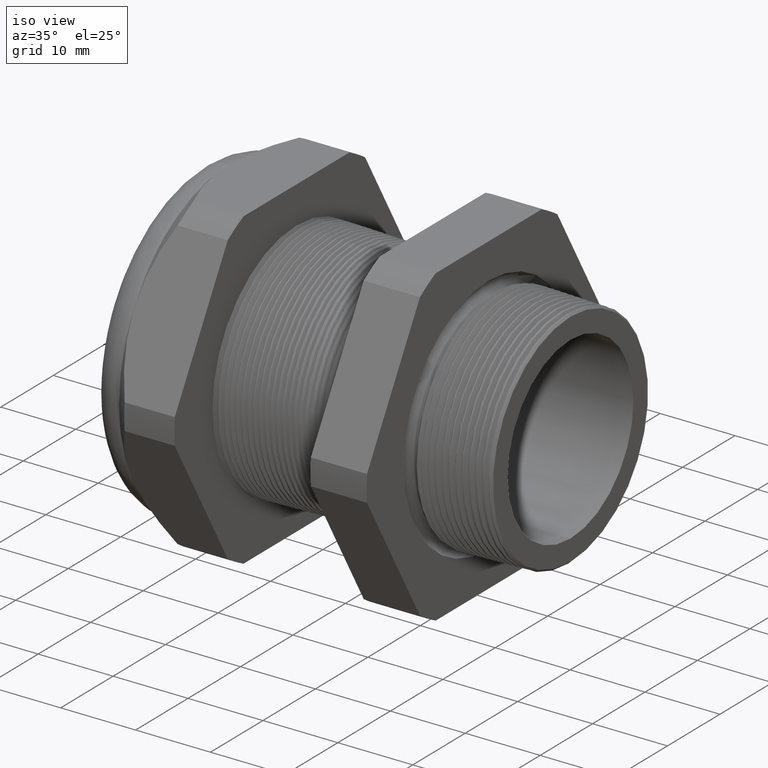
[diagram: clean part render]
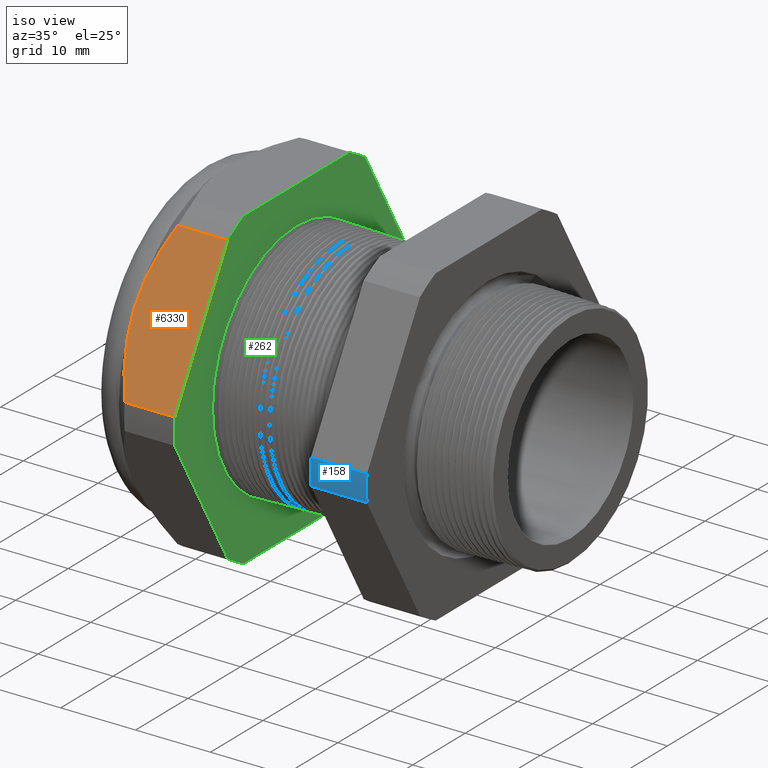
[diagram: same view with three faces highlighted in distinct colors, each labeled with its STEP entity id]
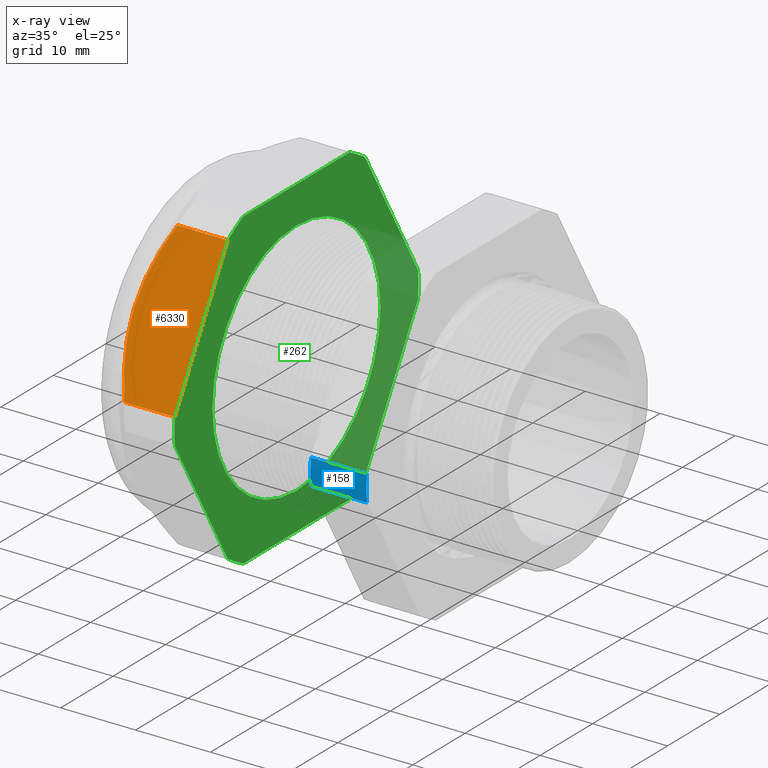
[diagram: x-ray of the same camera — body ghosted, the three highlighted faces saturated]
A machine part, iso view with three faces highlighted in distinct colors.
The next image is the same camera in x-ray (body ghosted, the three faces saturated) — at least one of them is partly hidden behind the body in this view.
Their STEP definitions:

[orange] entity #6330 — the highlighted planar face has unit normal (0, -0.866, 0.5).
#3809 = CARTESIAN_POINT ( 'NONE',  ( -1.583895669291338000, -0.9132000843845194900, 0.06829105636982570100 ) ) ;
#3810 = CARTESIAN_POINT ( 'NONE',  ( -1.611372398164720300, -0.8815466788935424300, 0.1231163629127779900 ) ) ;
#3811 = CARTESIAN_POINT ( 'NONE',  ( -1.634375627289488000, -0.8488306607340111400, 0.1797821685864317600 ) ) ;
#3812 = CARTESIAN_POINT ( 'NONE',  ( -1.665964438283853200, -0.7825559566388159400, 0.2945733233359036400 ) ) ;
#3813 = CARTESIAN_POINT ( 'NONE',  ( -1.674645669291337400, -0.7488564788623134300, 0.3529425310333433900 ) ) ;
#3814 = CARTESIAN_POINT ( 'NONE',  ( -1.674645669291337600, -0.7144709581221619900, 0.4124999999999997600 ) ) ;
#3815 = B_SPLINE_CURVE_WITH_KNOTS ( 'NONE', 3,
 ( #3814, #3813, #3812, #3811, #3810, #3809 ),
 .UNSPECIFIED., .F., .F.,
 ( 4, 2, 4 ),
 ( 0.01036164945538864700, 0.01553879763505035300, 0.02071594581471205800 ),
 .UNSPECIFIED. ) ;
#3858 = CARTESIAN_POINT ( 'NONE',  ( -1.670328354707565800, -0.6713824640496749400, 0.4871314609551776200 ) ) ;
#3859 = CARTESIAN_POINT ( 'NONE',  ( -1.664003129424731500, -0.6458952435726331700, 0.5312766217651236900 ) ) ;
#3860 = CARTESIAN_POINT ( 'NONE',  ( -1.657795156961972000, -0.6291518768872979000, 0.5602769835538801100 ) ) ;
#3861 = CARTESIAN_POINT ( 'NONE',  ( -1.634021755025360000, -0.5795634430641812800, 0.6461666704032857900 ) ) ;
#3862 = CARTESIAN_POINT ( 'NONE',  ( -1.611338430126442800, -0.5473561059063406500, 0.7019514147371661600 ) ) ;
#3863 = CARTESIAN_POINT ( 'NONE',  ( -1.583895669291338000, -0.5157418318598043800, 0.7567089436301736000 ) ) ;
#3869 = B_SPLINE_CURVE_WITH_KNOTS ( 'NONE', 3,
 ( #3863, #3862, #3861, #3860, #3859, #3858, #3925, #3924, #3923, #3922 ),
 .UNSPECIFIED., .F., .F.,
 ( 4, 2, 2, 2, 4 ),
 ( 2.483247851884477100E-007, 0.005180948890086925500, 0.007771299172737789100, 0.009066474314063217900, 0.01036164945538864700 ),
 .UNSPECIFIED. ) ;
#3870 = CARTESIAN_POINT ( 'NONE',  ( -1.674645669291337600, -0.7144709581221619900, 0.4124999999999997600 ) ) ;
#3893 = DIRECTION ( 'NONE',  ( 0.0000000000000000000, -0.4999999999999997200, -0.8660254037844388200 ) ) ;
#3894 = DIRECTION ( 'NONE',  ( 0.0000000000000000000, -0.8660254037844388200, 0.4999999999999997200 ) ) ;
#3895 = CARTESIAN_POINT ( 'NONE',  ( 0.1200000000000000900, -0.9132000843845194900, 0.06829105636982559000 ) ) ;
#3896 = AXIS2_PLACEMENT_3D ( 'NONE', #3895, #3894, #3893 ) ;
#3897 = PLANE ( 'NONE',  #3896 ) ;
#3898 = FACE_OUTER_BOUND ( 'NONE', #6316, .T. ) ;
#3906 = CARTESIAN_POINT ( 'NONE',  ( -1.320314960629920700, -0.9132000843845194900, 0.06829105636982570100 ) ) ;
#3907 = DIRECTION ( 'NONE',  ( 0.0000000000000000000, -0.4999999999999997200, -0.8660254037844388200 ) ) ;
#3908 = VECTOR ( 'NONE', #3907, 39.37007874015748900 ) ;
#3909 = CARTESIAN_POINT ( 'NONE',  ( -1.320314960629920700, -0.5569709581221621300, 0.6852980021920978000 ) ) ;
#3910 = LINE ( 'NONE', #3909, #3908 ) ;
#3911 = DIRECTION ( 'NONE',  ( -1.000000000000000000, 0.0000000000000000000, 0.0000000000000000000 ) ) ;
#3912 = VECTOR ( 'NONE', #3911, 39.37007874015748100 ) ;
#3913 = CARTESIAN_POINT ( 'NONE',  ( 0.1200000000000000900, -0.9132000843845194900, 0.06829105636982570100 ) ) ;
#3918 = LINE ( 'NONE', #3913, #3912 ) ;
#3921 = CARTESIAN_POINT ( 'NONE',  ( -1.583895669291338000, -0.9132000843845194900, 0.06829105636982570100 ) ) ;
#3922 = CARTESIAN_POINT ( 'NONE',  ( -1.674645669291337600, -0.7144709581221619900, 0.4124999999999997600 ) ) ;
#3923 = CARTESIAN_POINT ( 'NONE',  ( -1.674645669291337400, -0.7058686793890300800, 0.4273995838266527200 ) ) ;
#3924 = CARTESIAN_POINT ( 'NONE',  ( -1.674101283086532700, -0.6971877207736739700, 0.4424354452068525700 ) ) ;
#3925 = CARTESIAN_POINT ( 'NONE',  ( -1.671939090580067500, -0.6799402181191401800, 0.4723089961081849400 ) ) ;
#5088 = CARTESIAN_POINT ( 'NONE',  ( -1.320314960629920700, -0.5157418318598044900, 0.7567089436301736000 ) ) ;
#5102 = CARTESIAN_POINT ( 'NONE',  ( -1.583895669291338000, -0.5157418318598043800, 0.7567089436301736000 ) ) ;
#5107 = DIRECTION ( 'NONE',  ( -1.000000000000000000, 0.0000000000000000000, 0.0000000000000000000 ) ) ;
#5108 = VECTOR ( 'NONE', #5107, 39.37007874015748100 ) ;
#5109 = CARTESIAN_POINT ( 'NONE',  ( 0.1200000000000000900, -0.5157418318598044900, 0.7567089436301736000 ) ) ;
#5110 = LINE ( 'NONE', #5109, #5108 ) ;
#6289 = EDGE_CURVE ( 'NONE', #6312, #6320, #3815, .T. ) ;
#6308 = ORIENTED_EDGE ( 'NONE', *, *, #6289, .T. ) ;
#6312 = VERTEX_POINT ( 'NONE', #3870 ) ;
#6313 = EDGE_CURVE ( 'NONE', #6920, #6312, #3869, .T. ) ;
#6314 = ORIENTED_EDGE ( 'NONE', *, *, #6313, .T. ) ;
#6315 = ORIENTED_EDGE ( 'NONE', *, *, #6917, .T. ) ;
#6316 = EDGE_LOOP ( 'NONE', ( #6315, #6314, #6308, #6323, #6319 ) ) ;
#6319 = ORIENTED_EDGE ( 'NONE', *, *, #6325, .F. ) ;
#6320 = VERTEX_POINT ( 'NONE', #3921 ) ;
#6323 = ORIENTED_EDGE ( 'NONE', *, *, #6324, .F. ) ;
#6324 = EDGE_CURVE ( 'NONE', #6326, #6320, #3918, .T. ) ;
#6325 = EDGE_CURVE ( 'NONE', #6897, #6326, #3910, .T. ) ;
#6326 = VERTEX_POINT ( 'NONE', #3906 ) ;
#6330 = ADVANCED_FACE ( 'NONE', ( #3898 ), #3897, .T. ) ;
#6897 = VERTEX_POINT ( 'NONE', #5088 ) ;
#6917 = EDGE_CURVE ( 'NONE', #6897, #6920, #5110, .T. ) ;
#6920 = VERTEX_POINT ( 'NONE', #5102 ) ;

[blue] entity #158 — the highlighted cylindrical surface (partial cylindrical patch) has radius 23.26 mm, axis along (-1, 0, 0).
#156 = EDGE_CURVE ( 'NONE', #7436, #6996, #1626, .T. ) ;
#158 = ADVANCED_FACE ( 'NONE', ( #1622 ), #1621, .T. ) ;
#159 = EDGE_LOOP ( 'NONE', ( #212, #213, #214, #216 ) ) ;
#212 = ORIENTED_EDGE ( 'NONE', *, *, #156, .F. ) ;
#213 = ORIENTED_EDGE ( 'NONE', *, *, #6547, .F. ) ;
#214 = ORIENTED_EDGE ( 'NONE', *, *, #215, .T. ) ;
#215 = EDGE_CURVE ( 'NONE', #6548, #4444, #1677, .T. ) ;
#216 = ORIENTED_EDGE ( 'NONE', *, *, #6978, .F. ) ;
#1616 = DIRECTION ( 'NONE',  ( 0.0000000000000000000, 0.0000000000000000000, 1.000000000000000000 ) ) ;
#1617 = DIRECTION ( 'NONE',  ( -1.000000000000000000, 0.0000000000000000000, 0.0000000000000000000 ) ) ;
#1618 = CARTESIAN_POINT ( 'NONE',  ( 0.1200000000000000900, 0.0000000000000000000, 0.0000000000000000000 ) ) ;
#1619 = AXIS2_PLACEMENT_3D ( 'NONE', #1618, #1617, #1616 ) ;
#1621 = CYLINDRICAL_SURFACE ( 'NONE', #1619, 0.9157500000000000600 ) ;
#1622 = FACE_OUTER_BOUND ( 'NONE', #159, .T. ) ;
#1623 = DIRECTION ( 'NONE',  ( -1.000000000000000000, 0.0000000000000000000, 0.0000000000000000000 ) ) ;
#1624 = VECTOR ( 'NONE', #1623, 39.37007874015748100 ) ;
#1625 = CARTESIAN_POINT ( 'NONE',  ( 0.1200000000000000900, -0.9132000843845193800, -0.06829105636982593700 ) ) ;
#1626 = LINE ( 'NONE', #1625, #1624 ) ;
#1676 = CARTESIAN_POINT ( 'NONE',  ( 0.1200000000000000900, -0.9132000843845194900, 0.06829105636982570100 ) ) ;
#1677 = LINE ( 'NONE', #1676, #1739 ) ;
#1738 = DIRECTION ( 'NONE',  ( -1.000000000000000000, 0.0000000000000000000, 0.0000000000000000000 ) ) ;
#1739 = VECTOR ( 'NONE', #1738, 39.37007874015748100 ) ;
#3594 = CARTESIAN_POINT ( 'NONE',  ( -0.6052755905511810800, -0.9132000843845194900, 0.06829105636982570100 ) ) ;
#4340 = CARTESIAN_POINT ( 'NONE',  ( -0.3100000000000000000, -0.9132000843845194900, 0.06829105636982570100 ) ) ;
#4341 = DIRECTION ( 'NONE',  ( 0.0000000000000000000, 0.0000000000000000000, -1.000000000000000000 ) ) ;
#4342 = DIRECTION ( 'NONE',  ( 1.000000000000000000, 0.0000000000000000000, 0.0000000000000000000 ) ) ;
#4343 = CARTESIAN_POINT ( 'NONE',  ( -0.3100000000000000000, 0.0000000000000000000, 0.0000000000000000000 ) ) ;
#4344 = AXIS2_PLACEMENT_3D ( 'NONE', #4343, #4342, #4341 ) ;
#4345 = CIRCLE ( 'NONE', #4344, 0.9157500000000000600 ) ;
#4444 = VERTEX_POINT ( 'NONE', #3594 ) ;
#5241 = DIRECTION ( 'NONE',  ( 0.0000000000000000000, 0.0000000000000000000, 1.000000000000000000 ) ) ;
#5242 = DIRECTION ( 'NONE',  ( -1.000000000000000000, 0.0000000000000000000, 0.0000000000000000000 ) ) ;
#5243 = CARTESIAN_POINT ( 'NONE',  ( -0.6052755905511810800, 0.0000000000000000000, 0.0000000000000000000 ) ) ;
#5244 = AXIS2_PLACEMENT_3D ( 'NONE', #5243, #5242, #5241 ) ;
#5245 = CIRCLE ( 'NONE', #5244, 0.9157500000000000600 ) ;
#5273 = CARTESIAN_POINT ( 'NONE',  ( -0.6052755905511810800, -0.9132000843845193800, -0.06829105636982593700 ) ) ;
#6069 = CARTESIAN_POINT ( 'NONE',  ( -0.3100000000000000000, -0.9132000843845193800, -0.06829105636982593700 ) ) ;
#6547 = EDGE_CURVE ( 'NONE', #6548, #7436, #4345, .T. ) ;
#6548 = VERTEX_POINT ( 'NONE', #4340 ) ;
#6978 = EDGE_CURVE ( 'NONE', #6996, #4444, #5245, .T. ) ;
#6996 = VERTEX_POINT ( 'NONE', #5273 ) ;
#7436 = VERTEX_POINT ( 'NONE', #6069 ) ;

[green] entity #262 — the highlighted planar face has unit normal (1, 0, 0).
#230 = ORIENTED_EDGE ( 'NONE', *, *, #6370, .T. ) ;
#231 = ORIENTED_EDGE ( 'NONE', *, *, #6396, .T. ) ;
#232 = ORIENTED_EDGE ( 'NONE', *, *, #6285, .T. ) ;
#233 = ORIENTED_EDGE ( 'NONE', *, *, #6307, .T. ) ;
#242 = EDGE_CURVE ( 'NONE', #6818, #6826, #1709, .T. ) ;
#243 = ORIENTED_EDGE ( 'NONE', *, *, #6822, .F. ) ;
#244 = EDGE_LOOP ( 'NONE', ( #245, #246, #247, #248, #249, #250, #251, #252, #230, #231, #232, #233 ) ) ;
#245 = ORIENTED_EDGE ( 'NONE', *, *, #6546, .T. ) ;
#246 = ORIENTED_EDGE ( 'NONE', *, *, #6761, .T. ) ;
#247 = ORIENTED_EDGE ( 'NONE', *, *, #6816, .T. ) ;
#248 = ORIENTED_EDGE ( 'NONE', *, *, #6889, .T. ) ;
#249 = ORIENTED_EDGE ( 'NONE', *, *, #6318, .T. ) ;
#250 = ORIENTED_EDGE ( 'NONE', *, *, #6884, .T. ) ;
#251 = ORIENTED_EDGE ( 'NONE', *, *, #6325, .T. ) ;
#252 = ORIENTED_EDGE ( 'NONE', *, *, #6342, .T. ) ;
#262 = ADVANCED_FACE ( 'NONE', ( #1755, #1754 ), #1760, .T. ) ;
#263 = EDGE_LOOP ( 'NONE', ( #264, #243 ) ) ;
#264 = ORIENTED_EDGE ( 'NONE', *, *, #242, .F. ) ;
#1709 = CIRCLE ( 'NONE', #1770, 0.6300000000000000000 ) ;
#1750 = DIRECTION ( 'NONE',  ( 0.0000000000000000000, 0.0000000000000000000, -1.000000000000000000 ) ) ;
#1751 = DIRECTION ( 'NONE',  ( 1.000000000000000000, 0.0000000000000000000, 0.0000000000000000000 ) ) ;
#1752 = CARTESIAN_POINT ( 'NONE',  ( -1.320314960629920700, 0.6300000000000000000, 0.0000000000000000000 ) ) ;
#1753 = AXIS2_PLACEMENT_3D ( 'NONE', #1752, #1751, #1750 ) ;
#1754 = FACE_OUTER_BOUND ( 'NONE', #244, .T. ) ;
#1755 = FACE_BOUND ( 'NONE', #263, .T. ) ;
#1760 = PLANE ( 'NONE',  #1753 ) ;
#1767 = DIRECTION ( 'NONE',  ( 0.0000000000000000000, 0.0000000000000000000, -1.000000000000000000 ) ) ;
#1768 = DIRECTION ( 'NONE',  ( 1.000000000000000000, 0.0000000000000000000, 0.0000000000000000000 ) ) ;
#1769 = CARTESIAN_POINT ( 'NONE',  ( -1.320314960629921200, 0.0000000000000000000, 0.0000000000000000000 ) ) ;
#1770 = AXIS2_PLACEMENT_3D ( 'NONE', #1769, #1768, #1767 ) ;
#3739 = CARTESIAN_POINT ( 'NONE',  ( -1.320314960629920700, 0.3974582525247150100, -0.8249999999999999600 ) ) ;
#3754 = CARTESIAN_POINT ( 'NONE',  ( -1.320314960629920700, -0.3974582525247148400, -0.8250000000000000700 ) ) ;
#3755 = CARTESIAN_POINT ( 'NONE',  ( -1.320314960629920700, 0.5157418318598049300, -0.7567089436301733800 ) ) ;
#3817 = DIRECTION ( 'NONE',  ( 0.0000000000000000000, 1.000000000000000000, 0.0000000000000000000 ) ) ;
#3818 = VECTOR ( 'NONE', #3817, 39.37007874015748100 ) ;
#3819 = CARTESIAN_POINT ( 'NONE',  ( -1.320314960629920700, 0.6300000000000000000, -0.8250000000000000700 ) ) ;
#3820 = LINE ( 'NONE', #3819, #3818 ) ;
#3864 = DIRECTION ( 'NONE',  ( 0.0000000000000000000, -1.000000000000000000, 0.0000000000000000000 ) ) ;
#3865 = VECTOR ( 'NONE', #3864, 39.37007874015748100 ) ;
#3866 = CARTESIAN_POINT ( 'NONE',  ( -1.320314960629920700, 0.6300000000000000000, 0.8249999999999998400 ) ) ;
#3868 = LINE ( 'NONE', #3866, #3865 ) ;
#3877 = DIRECTION ( 'NONE',  ( 0.0000000000000000000, 0.0000000000000000000, -1.000000000000000000 ) ) ;
#3878 = DIRECTION ( 'NONE',  ( 1.000000000000000000, 0.0000000000000000000, 0.0000000000000000000 ) ) ;
#3879 = CARTESIAN_POINT ( 'NONE',  ( -1.320314960629920700, 0.0000000000000000000, 0.0000000000000000000 ) ) ;
#3880 = AXIS2_PLACEMENT_3D ( 'NONE', #3879, #3878, #3877 ) ;
#3881 = CIRCLE ( 'NONE', #3880, 0.9157500000000000600 ) ;
#3899 = CARTESIAN_POINT ( 'NONE',  ( -1.320314960629920700, -0.3974582525247157800, 0.8249999999999995100 ) ) ;
#3906 = CARTESIAN_POINT ( 'NONE',  ( -1.320314960629920700, -0.9132000843845194900, 0.06829105636982570100 ) ) ;
#3907 = DIRECTION ( 'NONE',  ( 0.0000000000000000000, -0.4999999999999997200, -0.8660254037844388200 ) ) ;
#3908 = VECTOR ( 'NONE', #3907, 39.37007874015748900 ) ;
#3909 = CARTESIAN_POINT ( 'NONE',  ( -1.320314960629920700, -0.5569709581221621300, 0.6852980021920978000 ) ) ;
#3910 = LINE ( 'NONE', #3909, #3908 ) ;
#3932 = CARTESIAN_POINT ( 'NONE',  ( -1.320314960629920700, -0.9132000843845193800, -0.06829105636982593700 ) ) ;
#3933 = DIRECTION ( 'NONE',  ( 0.0000000000000000000, 0.0000000000000000000, -1.000000000000000000 ) ) ;
#3934 = DIRECTION ( 'NONE',  ( 1.000000000000000000, 0.0000000000000000000, 0.0000000000000000000 ) ) ;
#3935 = CARTESIAN_POINT ( 'NONE',  ( -1.320314960629920700, 0.0000000000000000000, 0.0000000000000000000 ) ) ;
#3936 = AXIS2_PLACEMENT_3D ( 'NONE', #3935, #3934, #3933 ) ;
#3937 = CIRCLE ( 'NONE', #3936, 0.9157500000000000600 ) ;
#3957 = VECTOR ( 'NONE', #4011, 39.37007874015747400 ) ;
#3958 = CARTESIAN_POINT ( 'NONE',  ( -1.320314960629920700, -0.5569709581221615700, -0.6852980021920982400 ) ) ;
#3959 = LINE ( 'NONE', #3958, #3957 ) ;
#3960 = CARTESIAN_POINT ( 'NONE',  ( -1.320314960629920700, -0.5157418318598037100, -0.7567089436301741600 ) ) ;
#4011 = DIRECTION ( 'NONE',  ( 0.0000000000000000000, 0.5000000000000002200, -0.8660254037844386000 ) ) ;
#4072 = DIRECTION ( 'NONE',  ( 0.0000000000000000000, 0.0000000000000000000, -1.000000000000000000 ) ) ;
#4073 = DIRECTION ( 'NONE',  ( 1.000000000000000000, 0.0000000000000000000, 0.0000000000000000000 ) ) ;
#4074 = CARTESIAN_POINT ( 'NONE',  ( -1.320314960629920700, 0.0000000000000000000, 0.0000000000000000000 ) ) ;
#4075 = AXIS2_PLACEMENT_3D ( 'NONE', #4074, #4073, #4072 ) ;
#4076 = CIRCLE ( 'NONE', #4075, 0.9157500000000000600 ) ;
#4346 = DIRECTION ( 'NONE',  ( 0.0000000000000000000, 0.4999999999999998300, 0.8660254037844386000 ) ) ;
#4347 = VECTOR ( 'NONE', #4346, 39.37007874015748900 ) ;
#4348 = CARTESIAN_POINT ( 'NONE',  ( -1.320314960629920700, 0.8719709581221620800, -0.1397019978079019100 ) ) ;
#4349 = LINE ( 'NONE', #4348, #4347 ) ;
#4561 = CARTESIAN_POINT ( 'NONE',  ( -1.320314960629920700, 0.9132000843845193800, -0.06829105636982668600 ) ) ;
#4756 = DIRECTION ( 'NONE',  ( 0.0000000000000000000, 0.0000000000000000000, -1.000000000000000000 ) ) ;
#4757 = DIRECTION ( 'NONE',  ( 1.000000000000000000, 0.0000000000000000000, 0.0000000000000000000 ) ) ;
#4758 = CARTESIAN_POINT ( 'NONE',  ( -1.320314960629920700, 0.0000000000000000000, 0.0000000000000000000 ) ) ;
#4759 = AXIS2_PLACEMENT_3D ( 'NONE', #4758, #4757, #4756 ) ;
#4760 = CIRCLE ( 'NONE', #4759, 0.9157499999999999500 ) ;
#4761 = CARTESIAN_POINT ( 'NONE',  ( -1.320314960629920700, 0.9132000843845192700, 0.06829105636982647800 ) ) ;
#4802 = CARTESIAN_POINT ( 'NONE',  ( -1.320314960629920700, 0.3974582525247153400, 0.8249999999999998400 ) ) ;
#4869 = CARTESIAN_POINT ( 'NONE',  ( -1.320314960629921200, 0.0000000000000000000, 0.0000000000000000000 ) ) ;
#4875 = CARTESIAN_POINT ( 'NONE',  ( -1.320314960629921200, 0.0000000000000000000, 0.6300000000000000000 ) ) ;
#4876 = DIRECTION ( 'NONE',  ( 0.0000000000000000000, -0.4999999999999998300, 0.8660254037844388200 ) ) ;
#4877 = VECTOR ( 'NONE', #4876, 39.37007874015748100 ) ;
#4878 = CARTESIAN_POINT ( 'NONE',  ( -1.320314960629920700, 0.8719709581221617400, 0.1397019978079017700 ) ) ;
#4879 = LINE ( 'NONE', #4878, #4877 ) ;
#4880 = CARTESIAN_POINT ( 'NONE',  ( -1.320314960629920700, 0.5157418318598044900, 0.7567089436301736000 ) ) ;
#4911 = CARTESIAN_POINT ( 'NONE',  ( -1.320314960629921200, 7.715274834628325400E-017, -0.6300000000000000000 ) ) ;
#4921 = DIRECTION ( 'NONE',  ( 0.0000000000000000000, 0.0000000000000000000, -1.000000000000000000 ) ) ;
#4922 = DIRECTION ( 'NONE',  ( 1.000000000000000000, 0.0000000000000000000, 0.0000000000000000000 ) ) ;
#4923 = AXIS2_PLACEMENT_3D ( 'NONE', #4869, #4922, #4921 ) ;
#4924 = CIRCLE ( 'NONE', #4923, 0.6300000000000000000 ) ;
#5037 = DIRECTION ( 'NONE',  ( 0.0000000000000000000, 0.0000000000000000000, -1.000000000000000000 ) ) ;
#5038 = DIRECTION ( 'NONE',  ( 1.000000000000000000, 0.0000000000000000000, 0.0000000000000000000 ) ) ;
#5039 = CARTESIAN_POINT ( 'NONE',  ( -1.320314960629920700, 0.0000000000000000000, 0.0000000000000000000 ) ) ;
#5040 = AXIS2_PLACEMENT_3D ( 'NONE', #5039, #5038, #5037 ) ;
#5041 = CIRCLE ( 'NONE', #5040, 0.9157500000000000600 ) ;
#5053 = DIRECTION ( 'NONE',  ( 0.0000000000000000000, 0.0000000000000000000, -1.000000000000000000 ) ) ;
#5054 = DIRECTION ( 'NONE',  ( 1.000000000000000000, 0.0000000000000000000, 0.0000000000000000000 ) ) ;
#5055 = CARTESIAN_POINT ( 'NONE',  ( -1.320314960629920700, 0.0000000000000000000, 0.0000000000000000000 ) ) ;
#5056 = AXIS2_PLACEMENT_3D ( 'NONE', #5055, #5054, #5053 ) ;
#5057 = CIRCLE ( 'NONE', #5056, 0.9157500000000000600 ) ;
#5088 = CARTESIAN_POINT ( 'NONE',  ( -1.320314960629920700, -0.5157418318598044900, 0.7567089436301736000 ) ) ;
#6260 = VERTEX_POINT ( 'NONE', #3755 ) ;
#6261 = VERTEX_POINT ( 'NONE', #3754 ) ;
#6268 = VERTEX_POINT ( 'NONE', #3739 ) ;
#6285 = EDGE_CURVE ( 'NONE', #6261, #6268, #3820, .T. ) ;
#6307 = EDGE_CURVE ( 'NONE', #6268, #6260, #3881, .T. ) ;
#6318 = EDGE_CURVE ( 'NONE', #6769, #6328, #3868, .T. ) ;
#6325 = EDGE_CURVE ( 'NONE', #6897, #6326, #3910, .T. ) ;
#6326 = VERTEX_POINT ( 'NONE', #3906 ) ;
#6328 = VERTEX_POINT ( 'NONE', #3899 ) ;
#6342 = EDGE_CURVE ( 'NONE', #6326, #6346, #3937, .T. ) ;
#6346 = VERTEX_POINT ( 'NONE', #3932 ) ;
#6368 = VERTEX_POINT ( 'NONE', #3960 ) ;
#6370 = EDGE_CURVE ( 'NONE', #6346, #6368, #3959, .T. ) ;
#6396 = EDGE_CURVE ( 'NONE', #6368, #6261, #4076, .T. ) ;
#6546 = EDGE_CURVE ( 'NONE', #6260, #6667, #4349, .T. ) ;
#6667 = VERTEX_POINT ( 'NONE', #4561 ) ;
#6758 = VERTEX_POINT ( 'NONE', #4761 ) ;
#6761 = EDGE_CURVE ( 'NONE', #6667, #6758, #4760, .T. ) ;
#6769 = VERTEX_POINT ( 'NONE', #4802 ) ;
#6814 = VERTEX_POINT ( 'NONE', #4880 ) ;
#6816 = EDGE_CURVE ( 'NONE', #6758, #6814, #4879, .T. ) ;
#6818 = VERTEX_POINT ( 'NONE', #4875 ) ;
#6822 = EDGE_CURVE ( 'NONE', #6826, #6818, #4924, .T. ) ;
#6826 = VERTEX_POINT ( 'NONE', #4911 ) ;
#6884 = EDGE_CURVE ( 'NONE', #6328, #6897, #5057, .T. ) ;
#6889 = EDGE_CURVE ( 'NONE', #6814, #6769, #5041, .T. ) ;
#6897 = VERTEX_POINT ( 'NONE', #5088 ) ;